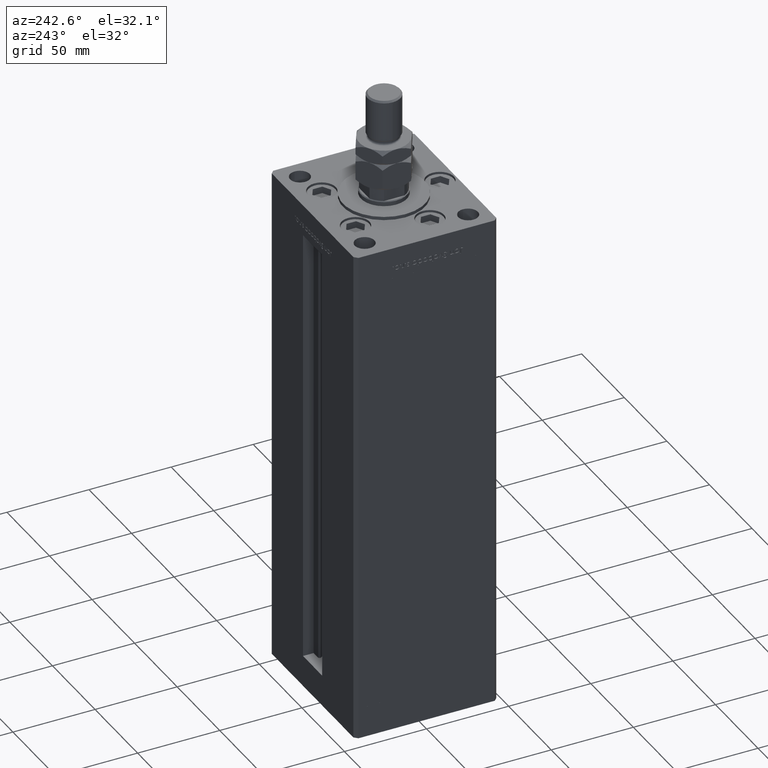
[diagram: clean part render]
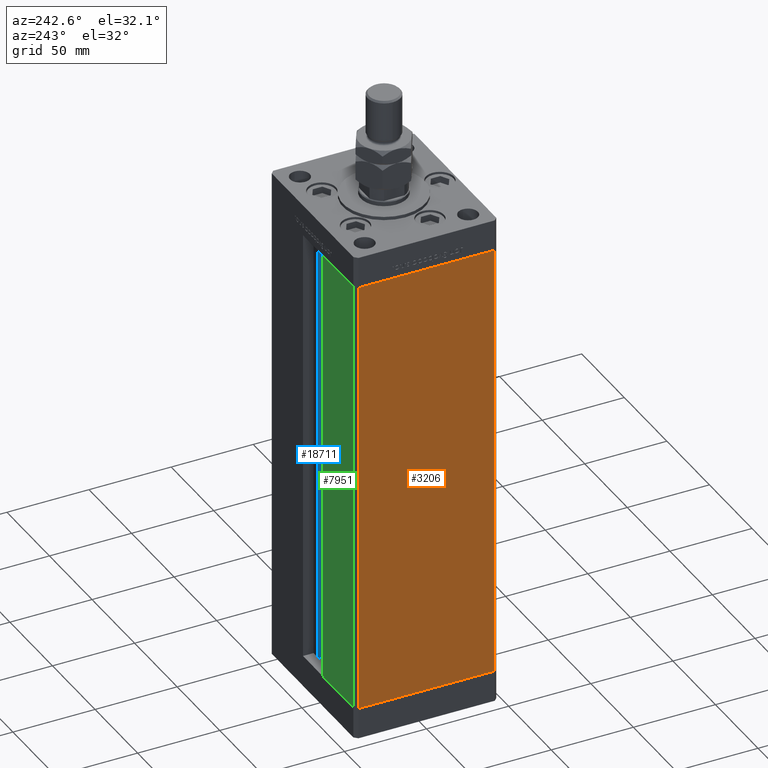
[diagram: same view with three faces highlighted in distinct colors, each labeled with its STEP entity id]
A machine part, auxiliary view with three faces highlighted in distinct colors.
Their STEP definitions:

[orange] entity #3206 — the highlighted planar face has unit normal (1, 0, 0).
#57 = DIRECTION ( 'NONE',  ( -0.000000000000000000, -0.000000000000000000, -1.000000000000000000 ) ) ;
#3206 = ADVANCED_FACE ( 'NONE', ( #23330 ), #11884, .F. ) ;
#3948 = VERTEX_POINT ( 'NONE', #13629 ) ;
#8298 = ORIENTED_EDGE ( 'NONE', *, *, #21709, .F. ) ;
#10258 = EDGE_CURVE ( 'NONE', #50397, #41289, #17920, .T. ) ;
#11356 = DIRECTION ( 'NONE',  ( -3.344045254895050480E-16, 1.000000000000000000, 0.000000000000000000 ) ) ;
#11624 = CARTESIAN_POINT ( 'NONE',  ( -50.00000000000001421, 41.49999999999999289, 268.5000000000000000 ) ) ;
#11884 = PLANE ( 'NONE',  #34373 ) ;
#13099 = LINE ( 'NONE', #28628, #29820 ) ;
#13629 = CARTESIAN_POINT ( 'NONE',  ( -49.99999999999998579, -41.49999999999999289, 0.000000000000000000 ) ) ;
#17650 = DIRECTION ( 'NONE',  ( 3.344045254895050973E-16, -1.000000000000000000, 0.000000000000000000 ) ) ;
#17920 = LINE ( 'NONE', #34241, #18145 ) ;
#18145 = VECTOR ( 'NONE', #17650, 1000.000000000000000 ) ;
#18921 = DIRECTION ( 'NONE',  ( 3.344045254895050973E-16, -1.000000000000000000, 0.000000000000000000 ) ) ;
#20311 = DIRECTION ( 'NONE',  ( 1.000000000000000000, 3.344045254895050480E-16, -0.000000000000000000 ) ) ;
#20785 = EDGE_CURVE ( 'NONE', #50397, #41299, #13099, .T. ) ;
#21657 = ORIENTED_EDGE ( 'NONE', *, *, #36811, .T. ) ;
#21709 = EDGE_CURVE ( 'NONE', #41289, #3948, #53572, .T. ) ;
#21725 = EDGE_LOOP ( 'NONE', ( #21657, #8298, #37517, #23167 ) ) ;
#22181 = LINE ( 'NONE', #38765, #37146 ) ;
#23167 = ORIENTED_EDGE ( 'NONE', *, *, #20785, .T. ) ;
#23330 = FACE_OUTER_BOUND ( 'NONE', #21725, .T. ) ;
#26045 = CARTESIAN_POINT ( 'NONE',  ( -50.00000000000001421, 41.49999999999999289, 0.000000000000000000 ) ) ;
#28122 = VECTOR ( 'NONE', #28834, 1000.000000000000000 ) ;
#28628 = CARTESIAN_POINT ( 'NONE',  ( -50.00000000000001421, 41.49999999999999289, 268.5000000000000000 ) ) ;
#28834 = DIRECTION ( 'NONE',  ( -0.000000000000000000, -0.000000000000000000, -1.000000000000000000 ) ) ;
#29820 = VECTOR ( 'NONE', #57, 1000.000000000000000 ) ;
#34241 = CARTESIAN_POINT ( 'NONE',  ( -50.00000000000001421, 41.49999999999999289, 268.5000000000000000 ) ) ;
#34373 = AXIS2_PLACEMENT_3D ( 'NONE', #11624, #20311, #11356 ) ;
#35755 = CARTESIAN_POINT ( 'NONE',  ( -50.00000000000001421, 41.49999999999999289, 268.5000000000000000 ) ) ;
#36811 = EDGE_CURVE ( 'NONE', #41299, #3948, #22181, .T. ) ;
#37146 = VECTOR ( 'NONE', #18921, 1000.000000000000000 ) ;
#37517 = ORIENTED_EDGE ( 'NONE', *, *, #10258, .F. ) ;
#38765 = CARTESIAN_POINT ( 'NONE',  ( -50.00000000000001421, 41.49999999999999289, 0.000000000000000000 ) ) ;
#41289 = VERTEX_POINT ( 'NONE', #45886 ) ;
#41299 = VERTEX_POINT ( 'NONE', #26045 ) ;
#41850 = CARTESIAN_POINT ( 'NONE',  ( -49.99999999999998579, -41.49999999999999289, 268.5000000000000000 ) ) ;
#45886 = CARTESIAN_POINT ( 'NONE',  ( -49.99999999999998579, -41.49999999999999289, 268.5000000000000000 ) ) ;
#50397 = VERTEX_POINT ( 'NONE', #35755 ) ;
#53572 = LINE ( 'NONE', #41850, #28122 ) ;

[blue] entity #18711 — the highlighted cylindrical surface (edge-blend (fillet) strip) has radius 0.9333 mm, axis along (0, 0, 1).
#1813 = CARTESIAN_POINT ( 'NONE',  ( 6.183333333333997928, 36.06666666666598786, 268.5000000000000000 ) ) ;
#2304 = CYLINDRICAL_SURFACE ( 'NONE', #35891, 0.9333333333340008142 ) ;
#2578 = FACE_OUTER_BOUND ( 'NONE', #45459, .T. ) ;
#4558 = DIRECTION ( 'NONE',  ( -0.000000000000000000, -0.000000000000000000, -1.000000000000000000 ) ) ;
#6995 = CIRCLE ( 'NONE', #21737, 0.9333333333340008142 ) ;
#7186 = DIRECTION ( 'NONE',  ( 1.000000000000000000, 0.000000000000000000, 0.000000000000000000 ) ) ;
#7282 = VECTOR ( 'NONE', #19217, 1000.000000000000000 ) ;
#8229 = VERTEX_POINT ( 'NONE', #29106 ) ;
#8645 = EDGE_CURVE ( 'NONE', #8229, #40446, #13719, .T. ) ;
#11052 = LINE ( 'NONE', #44216, #7282 ) ;
#11053 = DIRECTION ( 'NONE',  ( 1.000000000000000000, 0.000000000000000000, 0.000000000000000000 ) ) ;
#11267 = CARTESIAN_POINT ( 'NONE',  ( 6.183333333333997928, 36.99999999999999289, 0.000000000000000000 ) ) ;
#11269 = DIRECTION ( 'NONE',  ( -0.000000000000000000, -0.000000000000000000, 1.000000000000000000 ) ) ;
#11289 = ORIENTED_EDGE ( 'NONE', *, *, #8645, .F. ) ;
#11713 = EDGE_CURVE ( 'NONE', #51836, #44567, #6995, .T. ) ;
#11930 = VECTOR ( 'NONE', #52382, 1000.000000000000000 ) ;
#13719 = CIRCLE ( 'NONE', #26726, 0.9333333333340008142 ) ;
#14544 = CARTESIAN_POINT ( 'NONE',  ( 6.183333333333997928, 36.06666666666598786, 0.000000000000000000 ) ) ;
#16118 = EDGE_CURVE ( 'NONE', #40446, #44567, #11052, .T. ) ;
#18711 = ADVANCED_FACE ( 'NONE', ( #2578 ), #2304, .T. ) ;
#19217 = DIRECTION ( 'NONE',  ( -0.000000000000000000, -0.000000000000000000, 1.000000000000000000 ) ) ;
#21737 = AXIS2_PLACEMENT_3D ( 'NONE', #1813, #28178, #11053 ) ;
#22843 = ORIENTED_EDGE ( 'NONE', *, *, #16118, .F. ) ;
#25817 = CARTESIAN_POINT ( 'NONE',  ( 6.183333333333997928, 36.99999999999999289, 268.5000000000000000 ) ) ;
#26726 = AXIS2_PLACEMENT_3D ( 'NONE', #41787, #4558, #37734 ) ;
#28178 = DIRECTION ( 'NONE',  ( 0.000000000000000000, 0.000000000000000000, -1.000000000000000000 ) ) ;
#28179 = CARTESIAN_POINT ( 'NONE',  ( 5.375042956467945388, 35.59999999999898534, 0.000000000000000000 ) ) ;
#28281 = ORIENTED_EDGE ( 'NONE', *, *, #11713, .T. ) ;
#29106 = CARTESIAN_POINT ( 'NONE',  ( 5.375042956467945388, 35.59999999999898534, 0.000000000000000000 ) ) ;
#30474 = EDGE_CURVE ( 'NONE', #8229, #51836, #43940, .T. ) ;
#35891 = AXIS2_PLACEMENT_3D ( 'NONE', #14544, #11269, #7186 ) ;
#37734 = DIRECTION ( 'NONE',  ( 1.000000000000000000, 0.000000000000000000, 0.000000000000000000 ) ) ;
#40446 = VERTEX_POINT ( 'NONE', #11267 ) ;
#41787 = CARTESIAN_POINT ( 'NONE',  ( 6.183333333333997928, 36.06666666666598786, 0.000000000000000000 ) ) ;
#42974 = CARTESIAN_POINT ( 'NONE',  ( 5.375042956467943611, 35.59999999999898534, 268.5000000000000000 ) ) ;
#43940 = LINE ( 'NONE', #28179, #11930 ) ;
#44216 = CARTESIAN_POINT ( 'NONE',  ( 6.183333333333997928, 36.99999999999999289, 0.000000000000000000 ) ) ;
#44567 = VERTEX_POINT ( 'NONE', #25817 ) ;
#45065 = ORIENTED_EDGE ( 'NONE', *, *, #30474, .T. ) ;
#45459 = EDGE_LOOP ( 'NONE', ( #22843, #11289, #45065, #28281 ) ) ;
#51836 = VERTEX_POINT ( 'NONE', #42974 ) ;
#52382 = DIRECTION ( 'NONE',  ( -0.000000000000000000, -0.000000000000000000, 1.000000000000000000 ) ) ;

[green] entity #7951 — the highlighted planar face has unit normal (0, -1, 0).
#55 = ORIENTED_EDGE ( 'NONE', *, *, #13853, .F. ) ;
#407 = PLANE ( 'NONE',  #34575 ) ;
#953 = EDGE_CURVE ( 'NONE', #25531, #16876, #12422, .T. ) ;
#1064 = LINE ( 'NONE', #38589, #24034 ) ;
#4099 = VECTOR ( 'NONE', #45046, 1000.000000000000000 ) ;
#4221 = DIRECTION ( 'NONE',  ( 0.000000000000000000, -0.000000000000000000, -1.000000000000000000 ) ) ;
#4284 = CARTESIAN_POINT ( 'NONE',  ( -11.24999999999999822, 43.50000000000000000, 0.000000000000000000 ) ) ;
#4591 = CARTESIAN_POINT ( 'NONE',  ( -48.00000000000000711, 43.50000000000000000, 268.5000000000000000 ) ) ;
#4930 = DIRECTION ( 'NONE',  ( -1.000000000000000000, 0.000000000000000000, 0.000000000000000000 ) ) ;
#7951 = ADVANCED_FACE ( 'NONE', ( #8831 ), #407, .F. ) ;
#8831 = FACE_OUTER_BOUND ( 'NONE', #41830, .T. ) ;
#10590 = VERTEX_POINT ( 'NONE', #4284 ) ;
#12422 = LINE ( 'NONE', #49122, #4099 ) ;
#13853 = EDGE_CURVE ( 'NONE', #25531, #30771, #44285, .T. ) ;
#16876 = VERTEX_POINT ( 'NONE', #26643 ) ;
#17979 = CARTESIAN_POINT ( 'NONE',  ( -11.24999999999999822, 43.50000000000000000, 0.000000000000000000 ) ) ;
#23898 = CARTESIAN_POINT ( 'NONE',  ( -48.00000000000000711, 43.50000000000000000, 268.5000000000000000 ) ) ;
#24034 = VECTOR ( 'NONE', #34781, 1000.000000000000000 ) ;
#24884 = CARTESIAN_POINT ( 'NONE',  ( -11.24999999999999822, 43.50000000000000000, 268.5000000000000000 ) ) ;
#25108 = EDGE_CURVE ( 'NONE', #10590, #30771, #38374, .T. ) ;
#25531 = VERTEX_POINT ( 'NONE', #4591 ) ;
#26643 = CARTESIAN_POINT ( 'NONE',  ( -11.24999999999999822, 43.50000000000000000, 268.5000000000000000 ) ) ;
#29215 = EDGE_CURVE ( 'NONE', #10590, #16876, #1064, .T. ) ;
#30771 = VERTEX_POINT ( 'NONE', #33271 ) ;
#33271 = CARTESIAN_POINT ( 'NONE',  ( -48.00000000000000711, 43.50000000000000000, 0.000000000000000000 ) ) ;
#34093 = VECTOR ( 'NONE', #44808, 1000.000000000000000 ) ;
#34327 = VECTOR ( 'NONE', #4930, 1000.000000000000000 ) ;
#34575 = AXIS2_PLACEMENT_3D ( 'NONE', #24884, #41451, #4221 ) ;
#34781 = DIRECTION ( 'NONE',  ( -0.000000000000000000, -0.000000000000000000, 1.000000000000000000 ) ) ;
#38374 = LINE ( 'NONE', #17979, #34327 ) ;
#38589 = CARTESIAN_POINT ( 'NONE',  ( -11.24999999999999822, 43.50000000000000000, 0.000000000000000000 ) ) ;
#41451 = DIRECTION ( 'NONE',  ( 0.000000000000000000, -1.000000000000000000, 0.000000000000000000 ) ) ;
#41830 = EDGE_LOOP ( 'NONE', ( #49608, #43911, #45964, #55 ) ) ;
#43911 = ORIENTED_EDGE ( 'NONE', *, *, #29215, .F. ) ;
#44285 = LINE ( 'NONE', #23898, #34093 ) ;
#44808 = DIRECTION ( 'NONE',  ( -0.000000000000000000, -0.000000000000000000, -1.000000000000000000 ) ) ;
#45046 = DIRECTION ( 'NONE',  ( 1.000000000000000000, 0.000000000000000000, 0.000000000000000000 ) ) ;
#45964 = ORIENTED_EDGE ( 'NONE', *, *, #25108, .T. ) ;
#49122 = CARTESIAN_POINT ( 'NONE',  ( -11.24999999999999822, 43.50000000000000000, 268.5000000000000000 ) ) ;
#49608 = ORIENTED_EDGE ( 'NONE', *, *, #953, .T. ) ;